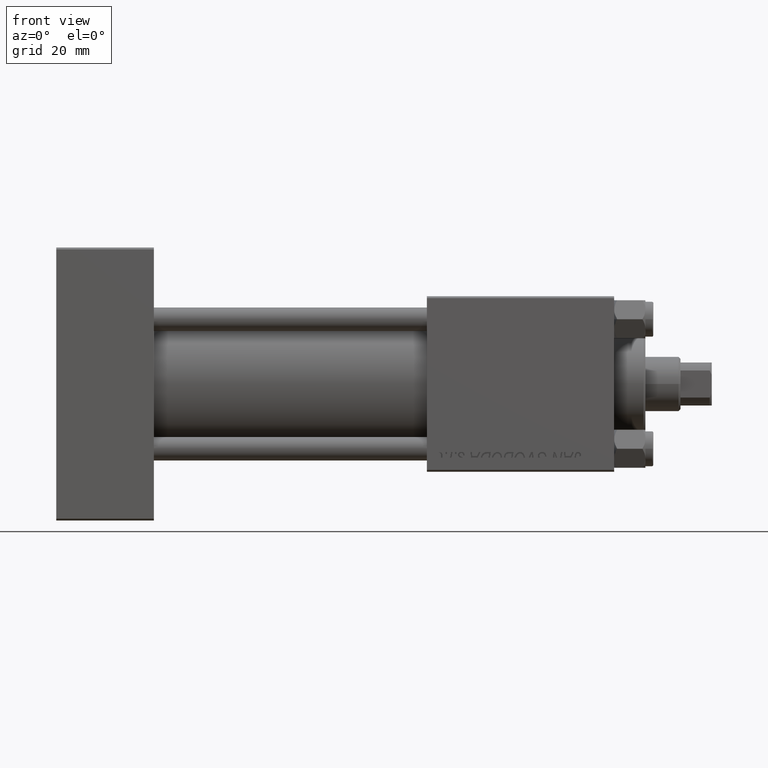
[diagram: clean part render]
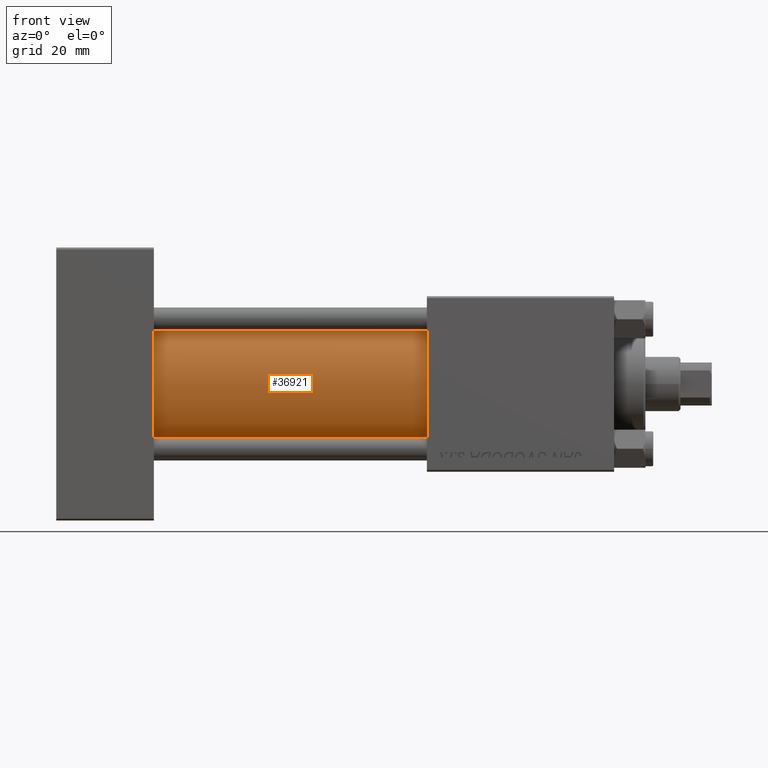
[diagram: same view with one face highlighted and labeled with its STEP entity id]
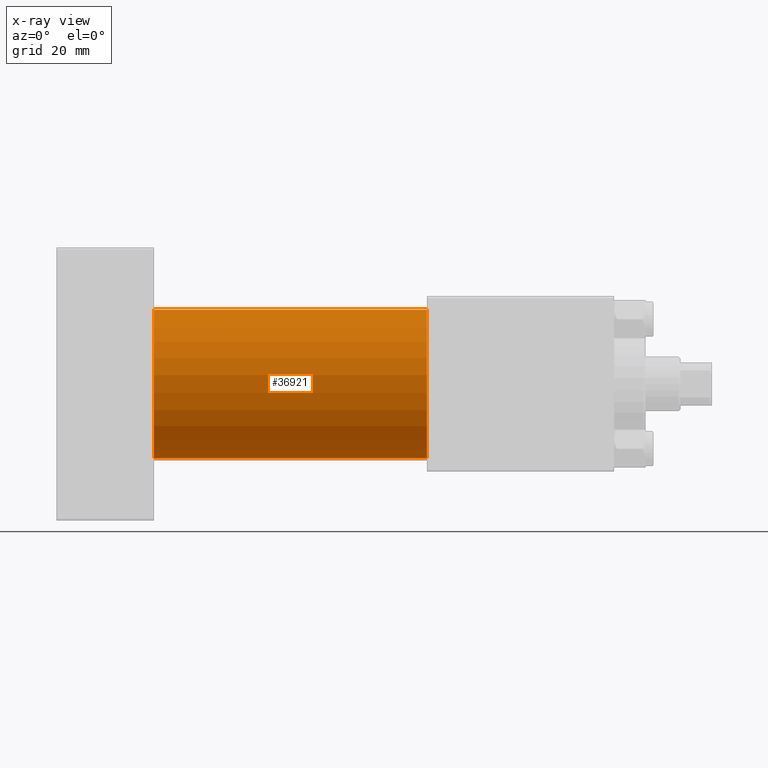
[diagram: x-ray of the same camera — body ghosted, the highlighted face saturated]
A machine part, front view. The second image highlights one B-rep face of the part: STEP entity #36921.
The next image is the same camera in x-ray: the body ghosted, the highlighted face saturated — about 0% of this face is hidden behind the body in this view.
In plain terms, the highlighted cylindrical surface (partial cylindrical patch) has radius 19 mm, axis along (-1, -0, -0).
Its self-contained STEP definition (entity closure, byte-faithful):
#130 = ORIENTED_EDGE ( 'NONE', *, *, #8955, .F. ) ;
#1958 = VECTOR ( 'NONE', #36851, 1000.000000000000000 ) ;
#3862 = ORIENTED_EDGE ( 'NONE', *, *, #28902, .F. ) ;
#6110 = CARTESIAN_POINT ( 'NONE',  ( 95.00000000000000000, -2.752562955852396712E-16, -19.00000000000000000 ) ) ;
#8955 = EDGE_CURVE ( 'NONE', #37431, #10189, #14487, .T. ) ;
#10189 = VERTEX_POINT ( 'NONE', #6110 ) ;
#12182 = DIRECTION ( 'NONE',  ( 0.000000000000000000, 0.000000000000000000, -1.000000000000000000 ) ) ;
#13073 = ORIENTED_EDGE ( 'NONE', *, *, #21234, .T. ) ;
#14487 = CIRCLE ( 'NONE', #20942, 19.00000000000000000 ) ;
#15486 = ORIENTED_EDGE ( 'NONE', *, *, #24105, .T. ) ;
#15988 = DIRECTION ( 'NONE',  ( 1.000000000000000000, 0.000000000000000000, 0.000000000000000000 ) ) ;
#16943 = CARTESIAN_POINT ( 'NONE',  ( 95.00000000000000000, -2.602085213965210642E-15, 19.00000000000000000 ) ) ;
#17439 = VECTOR ( 'NONE', #38463, 1000.000000000000000 ) ;
#18095 = CIRCLE ( 'NONE', #46309, 19.00000000000000000 ) ;
#20942 = AXIS2_PLACEMENT_3D ( 'NONE', #43012, #15988, #12182 ) ;
#21234 = EDGE_CURVE ( 'NONE', #47425, #44236, #18095, .T. ) ;
#22103 = CYLINDRICAL_SURFACE ( 'NONE', #37464, 19.00000000000000000 ) ;
#24105 = EDGE_CURVE ( 'NONE', #37431, #47425, #29772, .T. ) ;
#27842 = CARTESIAN_POINT ( 'NONE',  ( 95.00000000000000000, -2.752562955852396712E-16, -19.00000000000000000 ) ) ;
#28902 = EDGE_CURVE ( 'NONE', #10189, #44236, #39213, .T. ) ;
#29772 = LINE ( 'NONE', #44409, #1958 ) ;
#29955 = DIRECTION ( 'NONE',  ( 0.000000000000000000, 0.000000000000000000, 1.000000000000000000 ) ) ;
#30184 = DIRECTION ( 'NONE',  ( 0.000000000000000000, 0.000000000000000000, 1.000000000000000000 ) ) ;
#33398 = CARTESIAN_POINT ( 'NONE',  ( 24.99999999999999289, -2.752562955852396712E-16, -19.00000000000000000 ) ) ;
#33749 = CARTESIAN_POINT ( 'NONE',  ( 24.99999999999999289, -2.602085213965210642E-15, 0.000000000000000000 ) ) ;
#35456 = EDGE_LOOP ( 'NONE', ( #3862, #130, #15486, #13073 ) ) ;
#36851 = DIRECTION ( 'NONE',  ( -1.000000000000000000, -0.000000000000000000, -0.000000000000000000 ) ) ;
#36921 = ADVANCED_FACE ( 'NONE', ( #45797 ), #22103, .T. ) ;
#36948 = CARTESIAN_POINT ( 'NONE',  ( 24.99999999999999289, -2.602085213965210642E-15, 19.00000000000000000 ) ) ;
#37431 = VERTEX_POINT ( 'NONE', #16943 ) ;
#37464 = AXIS2_PLACEMENT_3D ( 'NONE', #41788, #41537, #30184 ) ;
#37532 = DIRECTION ( 'NONE',  ( 1.000000000000000000, -0.000000000000000000, 0.000000000000000000 ) ) ;
#38463 = DIRECTION ( 'NONE',  ( -1.000000000000000000, -0.000000000000000000, -0.000000000000000000 ) ) ;
#39213 = LINE ( 'NONE', #27842, #17439 ) ;
#41537 = DIRECTION ( 'NONE',  ( -1.000000000000000000, -0.000000000000000000, -0.000000000000000000 ) ) ;
#41788 = CARTESIAN_POINT ( 'NONE',  ( 95.00000000000000000, -2.602085213965210642E-15, 0.000000000000000000 ) ) ;
#43012 = CARTESIAN_POINT ( 'NONE',  ( 95.00000000000000000, -2.602085213965210642E-15, 0.000000000000000000 ) ) ;
#44236 = VERTEX_POINT ( 'NONE', #33398 ) ;
#44409 = CARTESIAN_POINT ( 'NONE',  ( 95.00000000000000000, -2.602085213965210642E-15, 19.00000000000000000 ) ) ;
#45797 = FACE_OUTER_BOUND ( 'NONE', #35456, .T. ) ;
#46309 = AXIS2_PLACEMENT_3D ( 'NONE', #33749, #37532, #29955 ) ;
#47425 = VERTEX_POINT ( 'NONE', #36948 ) ;